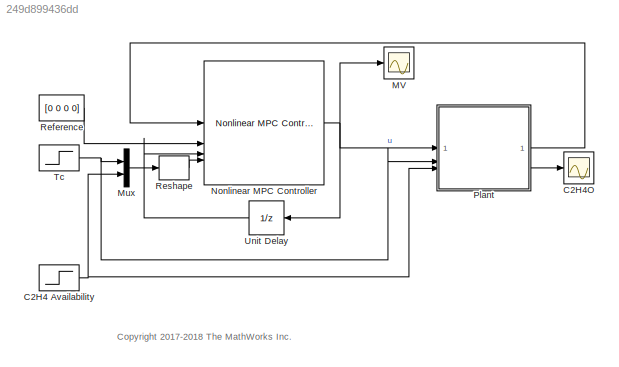
MODEL slx_249d899436dd
KIND model
CONFIG AbsTol = auto
CONFIG EnableMultiTasking = off
CONFIG FixedStep = auto
CONFIG MaxStep = 5
CONFIG MinStep = auto
CONFIG RelTol = 1e-3
CONFIG SampleTimeConstraint = Unconstrained
CONFIG SolverName = ode15s
CONFIG StartTime = 0.0
CONFIG StopTime = 300
BLOCK [Step] C2H4 Availability
  After = 0.25
  Before = C2H4Avalability
  SampleTime = 0
  Time = 200
BLOCK [Scope] C2H4O
  Floating = off
  NumInputPorts = 1
  ScopeSpecificationString = Simulink.scopes.TimeScopeBlockCfg('CurrentConfiguration', extmgr.ConfigurationSet(extmgr.Configuration('Core','General UI',true),extmgr.Configuration('Core','Source UI',true),extmgr.Configuration('Sources','WiredSimulink',true,'DataLoggingVariableName','OV','DataLogging',true,'DataLoggingSaveFormat','Array'),extmgr.Configuration('Visuals','Time Domain',true,'SerializedDisplays',{struct('MinYLimRea...<+1481ch>
BLOCK [Scope] MV
  Floating = off
  NumInputPorts = 1
  ScopeSpecificationString = Simulink.scopes.TimeScopeBlockCfg('CurrentConfiguration', extmgr.ConfigurationSet(extmgr.Configuration('Core','General UI',true),extmgr.Configuration('Core','Source UI',true),extmgr.Configuration('Sources','WiredSimulink',true,'DataLoggingVariableName','MV','SampleTime','Ts','DataLogging',true,'DataLoggingSaveFormat','Array'),extmgr.Configuration('Visuals','Time Domain',true,'SerializedDisplays',{...<+1490ch>
BLOCK [Mux] Mux
  DisplayOption = bar
  Inputs = 2
BLOCK [Reference] Nonlinear MPC Controller  REF=mpclib/Nonlinear MPC Controller  (lib defined in mdl_ae329e0e0455)
  SCDEnableBlockLinearizationSpecification = on
  SourceBlock = mpclib/Nonlinear MPC Controller
  SourceType = NonlinearMPC
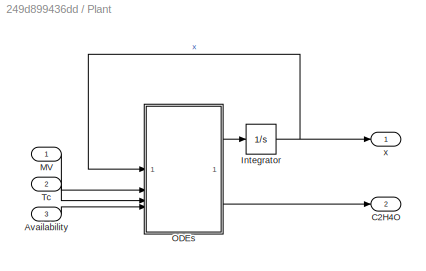
BLOCK [SubSystem] Plant
BLOCK [Inport] Plant/Availability
  Port = 3
BLOCK [Outport] Plant/C2H4O
  Port = 2
  VectorParamsAs1DForOutWhenUnconnected = off
BLOCK [Integrator] Plant/Integrator
  InitialCondition = x0
BLOCK [Inport] Plant/MV
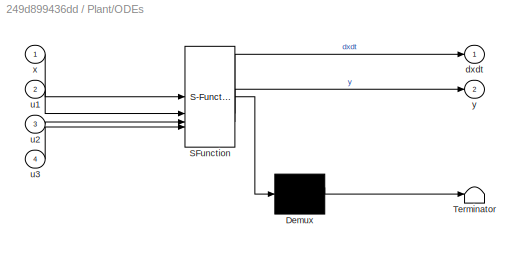
BLOCK [SubSystem] Plant/ODEs
  ErrorFcn = Stateflow.Translate.translate
  PermitHierarchicalResolution = ExplicitOnly
  SFBlockType = MATLAB Function
  TreatAsAtomicUnit = on
BLOCK [Demux] Plant/ODEs/ Demux 
  Outputs = 1
BLOCK [S-Function] Plant/ODEs/ SFunction 
  EnableBusSupport = off
  FunctionName = sf_sfun
  PortCounts = [4 3]
  SFcnIsStateOwnerBlock = off
  SFunctionDeploymentMode = off
  Tag = Stateflow S-Function 1
BLOCK [Terminator] Plant/ODEs/ Terminator 
BLOCK [Outport] Plant/ODEs/dxdt
  VectorParamsAs1DForOutWhenUnconnected = off
BLOCK [Inport] Plant/ODEs/u1
  Port = 2
BLOCK [Inport] Plant/ODEs/u2
  Port = 3
BLOCK [Inport] Plant/ODEs/u3
  Port = 4
BLOCK [Inport] Plant/ODEs/x
BLOCK [Outport] Plant/ODEs/y
  Port = 2
  VectorParamsAs1DForOutWhenUnconnected = off
BLOCK [Inport] Plant/Tc
  Port = 2
BLOCK [Outport] Plant/x
  VectorParamsAs1DForOutWhenUnconnected = off
BLOCK [Constant] Reference
  Value = [0 0 0 0]
  VectorParams1D = off
BLOCK [Reshape] Reshape
  OutputDimensionality = Row vector (2-D)
BLOCK [Step] Tc
  After = 1.15
  Before = Tc
  SampleTime = 0
  Time = 100
BLOCK [UnitDelay] Unit Delay
  HasFrameUpgradeWarning = on
  InitialCondition = u0
  SampleTime = -1
ANNOTATION (root): <copyright redacted>
NET C2H4 Availability:1 -> Mux:2, Plant:3
LINE Mux:1 -> Reshape:1
NET Nonlinear MPC Controller:1 -> MV:1, Plant:1, Unit Delay:1
LINE Plant/Availability:1 -> Plant/ODEs:4
NET Plant/Integrator:1 -> Plant/ODEs:1, Plant/x:1
LINE Plant/MV:1 -> Plant/ODEs:2
LINE Plant/ODEs:1 -> Plant/Integrator:1
LINE Plant/ODEs:2 -> Plant/C2H4O:1
LINE Plant/Tc:1 -> Plant/ODEs:3
LINE Plant:1 -> Nonlinear MPC Controller:1
LINE Plant:2 -> C2H4O:1
LINE Reference:1 -> Nonlinear MPC Controller:2
LINE Reshape:1 -> Nonlinear MPC Controller:4
NET Tc:1 -> Mux:1, Plant:2
LINE Unit Delay:1 -> Nonlinear MPC Controller:3
note: NET lines group one-source signal fan-out (src -> all destinations, sorted); 1:1 wires keep LINE
CHART Plant/ODEs states=1 transitions=1
  STATE_LABEL 'eML_blk_kernel()'
  STATE_LABEL 'SCRIPT:\nfunction [dxdt, y] = fcn(x, u1, u2, u3)\n% Compute time derivatives and outputs for the ethylene oxide reactor\ndxdt = oxidationPlantCT(x, [u1;u2;u3]);\ny = u3/u1*x(3)*x(4);\n'
CHART  states=0 transitions=0
